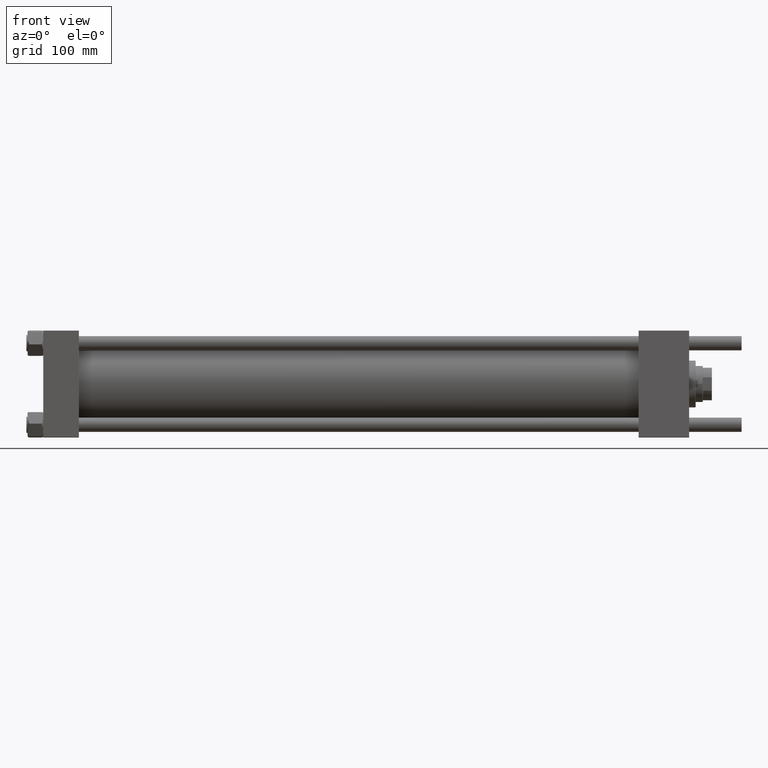
[diagram: clean part render]
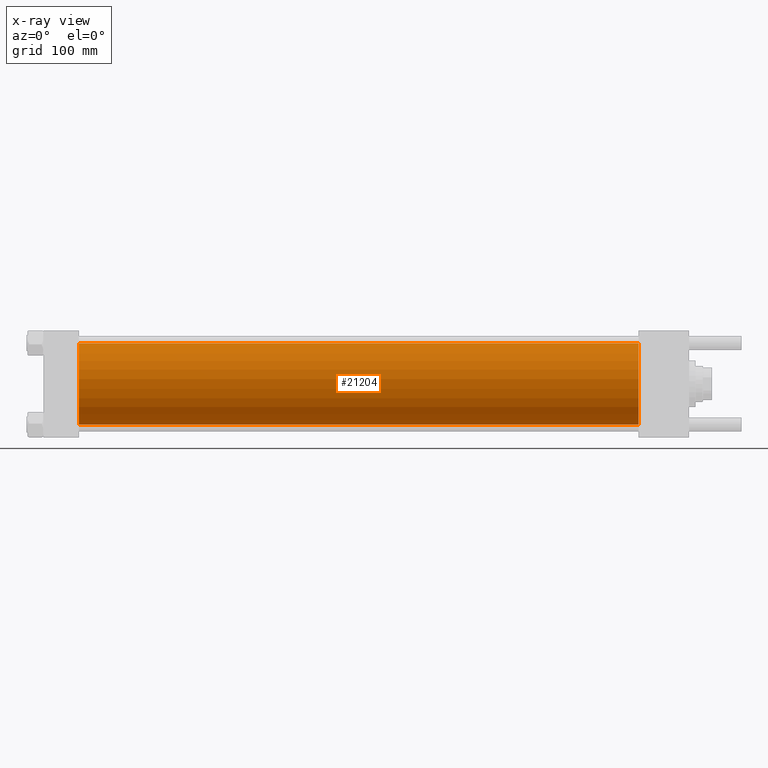
[diagram: x-ray — body ghosted, one internal face saturated and labeled with its STEP entity id]
A machine part, front view, then the same camera in x-ray: the body is ghosted and one INTERNAL B-rep face — a face not visible from any outside direction — is saturated and labeled: STEP entity #21204.
In plain terms, the highlighted cylindrical surface (partial cylindrical patch) has radius 62.5 mm, axis along (-1, -0, -0).
Its self-contained STEP definition (entity closure, byte-faithful):
#1409 = VECTOR ( 'NONE', #23141, 1000.000000000000000 ) ;
#3485 = DIRECTION ( 'NONE',  ( 1.000000000000000000, 0.000000000000000000, 0.000000000000000000 ) ) ;
#4286 = EDGE_CURVE ( 'NONE', #27651, #14189, #14164, .T. ) ;
#5597 = ORIENTED_EDGE ( 'NONE', *, *, #27992, .F. ) ;
#6239 = CARTESIAN_POINT ( 'NONE',  ( 55.00000000000000000, -2.602085213965210642E-15, 62.50000000000000000 ) ) ;
#11830 = VERTEX_POINT ( 'NONE', #40313 ) ;
#12788 = CYLINDRICAL_SURFACE ( 'NONE', #52659, 62.50000000000000000 ) ;
#14164 = LINE ( 'NONE', #27492, #1409 ) ;
#14189 = VERTEX_POINT ( 'NONE', #17787 ) ;
#15362 = CARTESIAN_POINT ( 'NONE',  ( 55.00000000000000000, -2.602085213965210642E-15, 0.000000000000000000 ) ) ;
#17787 = CARTESIAN_POINT ( 'NONE',  ( 55.00000000000000000, 5.051957280705747162E-15, -62.50000000000000000 ) ) ;
#21135 = DIRECTION ( 'NONE',  ( 0.000000000000000000, 0.000000000000000000, -1.000000000000000000 ) ) ;
#21204 = ADVANCED_FACE ( 'NONE', ( #31586 ), #12788, .F. ) ;
#21393 = CIRCLE ( 'NONE', #28801, 62.50000000000000000 ) ;
#21728 = EDGE_CURVE ( 'NONE', #11830, #24216, #26474, .T. ) ;
#23141 = DIRECTION ( 'NONE',  ( -1.000000000000000000, -0.000000000000000000, -0.000000000000000000 ) ) ;
#24216 = VERTEX_POINT ( 'NONE', #6239 ) ;
#24912 = DIRECTION ( 'NONE',  ( 0.000000000000000000, 0.000000000000000000, -1.000000000000000000 ) ) ;
#26474 = LINE ( 'NONE', #31391, #53590 ) ;
#27492 = CARTESIAN_POINT ( 'NONE',  ( 919.0000000000000000, 5.051957280705747162E-15, -62.50000000000000000 ) ) ;
#27651 = VERTEX_POINT ( 'NONE', #45263 ) ;
#27992 = EDGE_CURVE ( 'NONE', #24216, #14189, #21393, .T. ) ;
#28082 = EDGE_CURVE ( 'NONE', #11830, #27651, #44370, .T. ) ;
#28801 = AXIS2_PLACEMENT_3D ( 'NONE', #15362, #41723, #24912 ) ;
#30588 = EDGE_LOOP ( 'NONE', ( #49142, #47509, #5597, #33630 ) ) ;
#31391 = CARTESIAN_POINT ( 'NONE',  ( 919.0000000000000000, -2.602085213965210642E-15, 62.50000000000000000 ) ) ;
#31586 = FACE_OUTER_BOUND ( 'NONE', #30588, .T. ) ;
#33630 = ORIENTED_EDGE ( 'NONE', *, *, #21728, .F. ) ;
#39993 = CARTESIAN_POINT ( 'NONE',  ( 919.0000000000000000, -2.602085213965210642E-15, 0.000000000000000000 ) ) ;
#40313 = CARTESIAN_POINT ( 'NONE',  ( 919.0000000000000000, -2.602085213965210642E-15, 62.50000000000000000 ) ) ;
#41723 = DIRECTION ( 'NONE',  ( 1.000000000000000000, 0.000000000000000000, 0.000000000000000000 ) ) ;
#43134 = CARTESIAN_POINT ( 'NONE',  ( 919.0000000000000000, -2.602085213965210642E-15, 0.000000000000000000 ) ) ;
#44370 = CIRCLE ( 'NONE', #49003, 62.50000000000000000 ) ;
#45263 = CARTESIAN_POINT ( 'NONE',  ( 919.0000000000000000, 5.051957280705747162E-15, -62.50000000000000000 ) ) ;
#47509 = ORIENTED_EDGE ( 'NONE', *, *, #4286, .T. ) ;
#49003 = AXIS2_PLACEMENT_3D ( 'NONE', #43134, #3485, #21135 ) ;
#49142 = ORIENTED_EDGE ( 'NONE', *, *, #28082, .T. ) ;
#49228 = DIRECTION ( 'NONE',  ( -1.000000000000000000, -0.000000000000000000, -0.000000000000000000 ) ) ;
#52659 = AXIS2_PLACEMENT_3D ( 'NONE', #39993, #49228, #53298 ) ;
#53096 = DIRECTION ( 'NONE',  ( -1.000000000000000000, -0.000000000000000000, -0.000000000000000000 ) ) ;
#53298 = DIRECTION ( 'NONE',  ( 0.000000000000000000, 0.000000000000000000, 1.000000000000000000 ) ) ;
#53590 = VECTOR ( 'NONE', #53096, 1000.000000000000000 ) ;